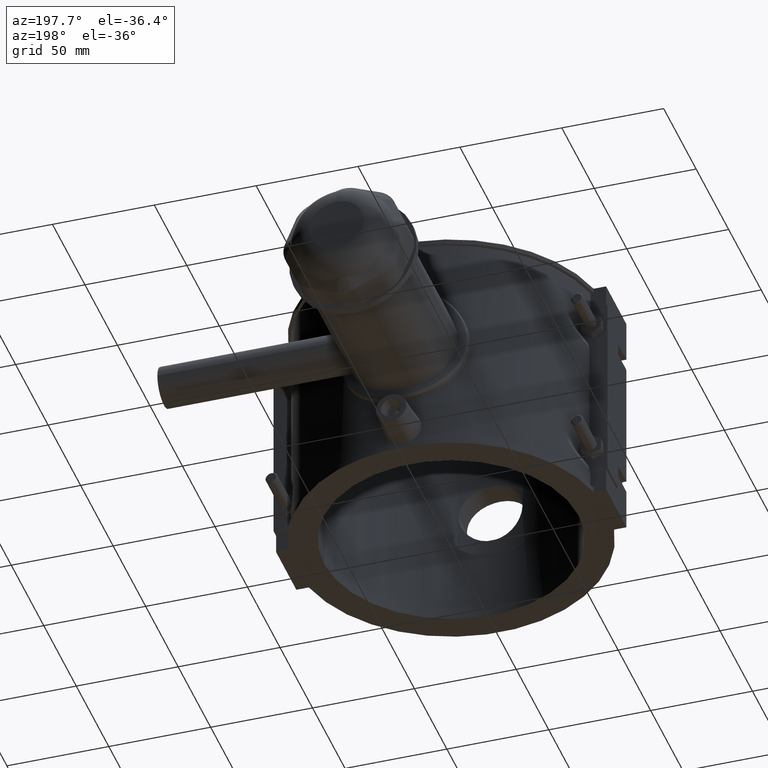
[diagram: clean part render]
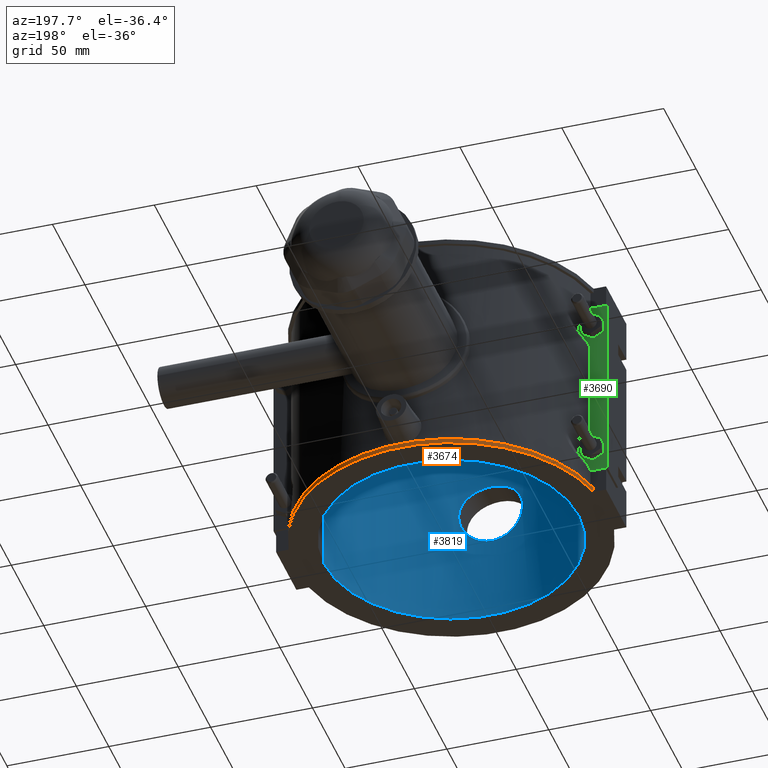
[diagram: same view with three faces highlighted in distinct colors, each labeled with its STEP entity id]
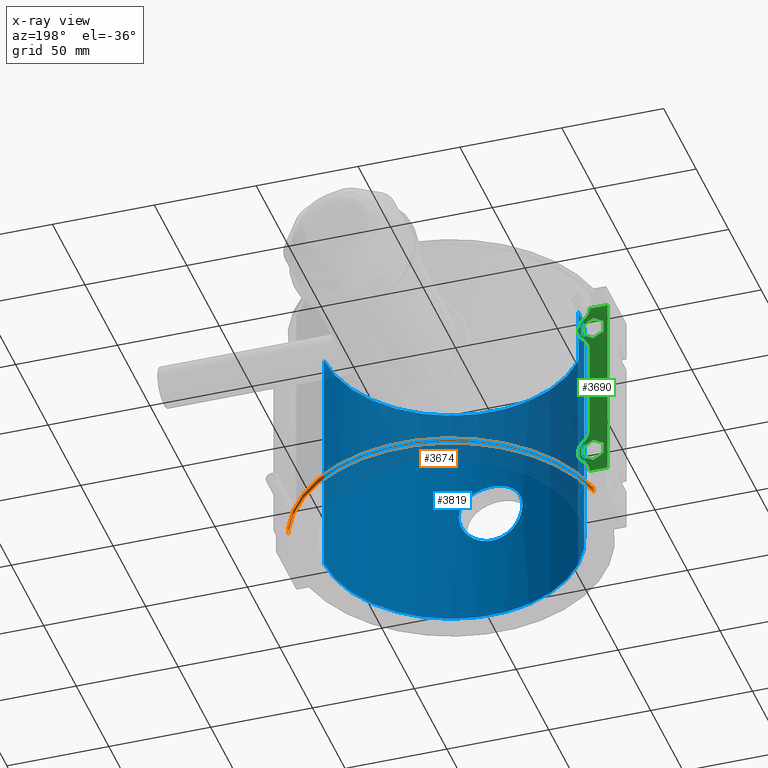
[diagram: x-ray of the same camera — body ghosted, the three highlighted faces saturated]
A machine part, auxiliary view with three faces highlighted in distinct colors.
The next image is the same camera in x-ray (body ghosted, the three faces saturated) — at least one of them is partly hidden behind the body in this view.
Their STEP definitions:

[orange] entity #3674 — the highlighted cylindrical surface (partial cylindrical patch) has radius 76.5 mm, axis along (0, 0, -1).
#109=LINE('',#6435,#408);
#110=LINE('',#6438,#409);
#408=VECTOR('',#4411,2.36);
#409=VECTOR('',#4414,2.36);
#821=CIRCLE('',#3923,76.5);
#822=CIRCLE('',#3924,76.5);
#1028=FACE_OUTER_BOUND('',#1264,.T.);
#1264=EDGE_LOOP('',(#2770,#2771,#2772,#2773));
#1669=VERTEX_POINT('',#6431);
#1670=VERTEX_POINT('',#6432);
#1671=VERTEX_POINT('',#6434);
#1672=VERTEX_POINT('',#6436);
#2081=EDGE_CURVE('',#1669,#1670,#821,.T.);
#2082=EDGE_CURVE('',#1671,#1670,#109,.T.);
#2083=EDGE_CURVE('',#1671,#1672,#822,.T.);
#2084=EDGE_CURVE('',#1669,#1672,#110,.T.);
#2770=ORIENTED_EDGE('',*,*,#2081,.T.);
#2771=ORIENTED_EDGE('',*,*,#2082,.F.);
#2772=ORIENTED_EDGE('',*,*,#2083,.T.);
#2773=ORIENTED_EDGE('',*,*,#2084,.F.);
#3564=CYLINDRICAL_SURFACE('',#3922,76.5);
#3674=ADVANCED_FACE('',(#1028),#3564,.T.);
#3922=AXIS2_PLACEMENT_3D('',#6430,#4407,#4408);
#3923=AXIS2_PLACEMENT_3D('',#6433,#4409,#4410);
#3924=AXIS2_PLACEMENT_3D('',#6437,#4412,#4413);
#4407=DIRECTION('center_axis',(0.,0.,-1.));
#4408=DIRECTION('ref_axis',(0.97891910032494,0.204248366013072,0.));
#4409=DIRECTION('center_axis',(0.,0.,1.));
#4410=DIRECTION('ref_axis',(0.97891910032494,0.204248366013072,0.));
#4411=DIRECTION('',(0.,0.,-1.));
#4412=DIRECTION('center_axis',(0.,0.,-1.));
#4413=DIRECTION('ref_axis',(0.97891910032494,0.204248366013072,0.));
#4414=DIRECTION('',(0.,0.,1.));
#6430=CARTESIAN_POINT('Origin',(0.,0.,-59.));
#6431=CARTESIAN_POINT('',(74.8873111748579,15.625,-59.));
#6432=CARTESIAN_POINT('',(-74.8873111748579,15.625,-59.));
#6433=CARTESIAN_POINT('Origin',(0.,0.,-59.));
#6434=CARTESIAN_POINT('',(-74.8873111748579,15.625,-56.64));
#6435=CARTESIAN_POINT('',(-74.8873111748579,15.625,-59.));
#6436=CARTESIAN_POINT('',(74.8873111748579,15.625,-56.64));
#6437=CARTESIAN_POINT('Origin',(0.,0.,-56.64));
#6438=CARTESIAN_POINT('',(74.8873111748579,15.625,-59.));

[blue] entity #3819 — the highlighted cylindrical surface (partial cylindrical patch) has radius 62.5 mm, axis along (0, 0, 1).
#284=LINE('',#7639,#583);
#337=LINE('',#8031,#636);
#583=VECTOR('',#4882,118.);
#636=VECTOR('',#5071,118.);
#901=CIRCLE('',#4142,62.5);
#902=CIRCLE('',#4144,62.5);
#953=FACE_BOUND('',#1446,.T.);
#1173=FACE_OUTER_BOUND('',#1445,.T.);
#1445=EDGE_LOOP('',(#3500,#3501,#3502,#3503));
#1446=EDGE_LOOP('',(#3504));
#1509=B_SPLINE_CURVE_WITH_KNOTS('',3,(#6182,#6183,#6184,#6185,#6186,#6187,
#6188,#6189,#6190,#6191,#6192,#6193,#6194,#6195,#6196,#6197,#6198,#6199,
#6200,#6201,#6202,#6203,#6204,#6205,#6206,#6207,#6208,#6209,#6210,#6211,
#6212,#6213,#6214,#6215,#6216,#6217,#6218,#6219,#6220,#6221,#6222,#6223,
#6224,#6225,#6226,#6227,#6228,#6229,#6230,#6231,#6232,#6233,#6234,#6235,
#6236,#6237,#6238,#6239,#6240,#6241,#6242,#6243,#6244,#6245,#6246,#6247),
 .UNSPECIFIED.,.T.,.F.,(4,2,2,2,2,2,2,2,2,2,2,2,2,2,2,2,2,2,2,2,2,2,2,2,
2,2,2,2,2,2,2,2,4),(0.,0.296713617074853,0.593427234149707,0.89014085122456,
1.18685446829941,1.48352599418842,1.78019752007742,2.07686904596642,2.37354057185543,
2.67021209774443,2.96688362363343,3.26355514952244,3.56022667541144,3.85694029248629,
4.15365390956114,4.450367526636,4.74708114371085,5.04379476078571,5.34050837786056,
5.63722199493541,5.93393561201027,6.23060713789927,6.52727866378827,6.82395018967727,
7.12062171556628,7.41729324145528,7.71396476734428,8.01063629323329,8.30730781912229,
8.60402143619714,8.900735053272,9.19744867034685,9.4941622874217),
 .UNSPECIFIED.);
#1667=VERTEX_POINT('',#6181);
#1865=VERTEX_POINT('',#7636);
#1866=VERTEX_POINT('',#7638);
#1918=VERTEX_POINT('',#8028);
#1919=VERTEX_POINT('',#8030);
#2078=EDGE_CURVE('',#1667,#1667,#1509,.T.);
#2354=EDGE_CURVE('',#1866,#1865,#284,.T.);
#2447=EDGE_CURVE('',#1919,#1918,#337,.T.);
#2449=EDGE_CURVE('',#1919,#1865,#901,.T.);
#2450=EDGE_CURVE('',#1866,#1918,#902,.T.);
#3500=ORIENTED_EDGE('',*,*,#2447,.T.);
#3501=ORIENTED_EDGE('',*,*,#2450,.F.);
#3502=ORIENTED_EDGE('',*,*,#2354,.T.);
#3503=ORIENTED_EDGE('',*,*,#2449,.F.);
#3504=ORIENTED_EDGE('',*,*,#2078,.T.);
#3600=CYLINDRICAL_SURFACE('',#4145,62.5);
#3819=ADVANCED_FACE('',(#1173,#953),#3600,.F.);
#4142=AXIS2_PLACEMENT_3D('',#8035,#5077,#5078);
#4144=AXIS2_PLACEMENT_3D('',#8037,#5081,#5082);
#4145=AXIS2_PLACEMENT_3D('',#8038,#5083,#5084);
#4882=DIRECTION('',(0.,0.,1.));
#5071=DIRECTION('',(0.,0.,-1.));
#5077=DIRECTION('center_axis',(0.,0.,-1.));
#5078=DIRECTION('ref_axis',(-1.,0.,0.));
#5081=DIRECTION('center_axis',(0.,0.,1.));
#5082=DIRECTION('ref_axis',(-1.,0.,0.));
#5083=DIRECTION('center_axis',(0.,0.,1.));
#5084=DIRECTION('ref_axis',(-1.,0.,0.));
#6181=CARTESIAN_POINT('',(15.68,-60.5011371793952,-2.77555756156289E-16));
#6182=CARTESIAN_POINT('Ctrl Pts',(15.68,-60.5011371793952,-2.77555756156289E-16));
#6183=CARTESIAN_POINT('Ctrl Pts',(15.68,-60.5011371793952,0.989045390249511));
#6184=CARTESIAN_POINT('Ctrl Pts',(15.5849128879652,-60.5260509344362,2.01044452076717));
#6185=CARTESIAN_POINT('Ctrl Pts',(15.1859893214769,-60.6273707143846,4.03944615733215));
#6186=CARTESIAN_POINT('Ctrl Pts',(14.882254018715,-60.7036916421501,5.04707279805853));
#6187=CARTESIAN_POINT('Ctrl Pts',(14.0808790626117,-60.8945687159385,6.97734078903111));
#6188=CARTESIAN_POINT('Ctrl Pts',(13.5826027393085,-61.0090844109358,7.9016004003937));
#6189=CARTESIAN_POINT('Ctrl Pts',(12.4327969197639,-61.2537430575092,9.60978391321038));
#6190=CARTESIAN_POINT('Ctrl Pts',(11.7811822567518,-61.3836351907405,10.3936864012583));
#6191=CARTESIAN_POINT('Ctrl Pts',(10.3937848149181,-61.6337247036271,11.781083843092));
#6192=CARTESIAN_POINT('Ctrl Pts',(9.60992827535144,-61.7627993138526,12.4326873128922));
#6193=CARTESIAN_POINT('Ctrl Pts',(7.90171663618481,-62.004491569047,13.5825369316202));
#6194=CARTESIAN_POINT('Ctrl Pts',(6.97738300336776,-62.1168773493664,14.0808636950187));
#6195=CARTESIAN_POINT('Ctrl Pts',(5.04696967397419,-62.3034382855447,14.88229467369));
#6196=CARTESIAN_POINT('Ctrl Pts',(4.039273959469,-62.3776074704934,15.1860356320058));
#6197=CARTESIAN_POINT('Ctrl Pts',(2.0102529703561,-62.4759196079409,15.5849380920303));
#6198=CARTESIAN_POINT('Ctrl Pts',(0.988905086296677,-62.5,15.68));
#6199=CARTESIAN_POINT('Ctrl Pts',(-0.988905086296675,-62.5,15.68));
#6200=CARTESIAN_POINT('Ctrl Pts',(-2.0102529703561,-62.4759196079409,15.5849380920303));
#6201=CARTESIAN_POINT('Ctrl Pts',(-4.039273959469,-62.3776074704934,15.1860356320058));
#6202=CARTESIAN_POINT('Ctrl Pts',(-5.04696967397419,-62.3034382855447,14.88229467369));
#6203=CARTESIAN_POINT('Ctrl Pts',(-6.97738300336776,-62.1168773493664,14.0808636950187));
#6204=CARTESIAN_POINT('Ctrl Pts',(-7.90171663618481,-62.004491569047,13.5825369316202));
#6205=CARTESIAN_POINT('Ctrl Pts',(-9.60992827535144,-61.7627993138526,12.4326873128922));
#6206=CARTESIAN_POINT('Ctrl Pts',(-10.3937848149181,-61.6337247036271,11.781083843092));
#6207=CARTESIAN_POINT('Ctrl Pts',(-11.7811822567518,-61.3836351907405,10.3936864012583));
#6208=CARTESIAN_POINT('Ctrl Pts',(-12.4327969197639,-61.2537430575092,9.60978391321039));
#6209=CARTESIAN_POINT('Ctrl Pts',(-13.5826027393085,-61.0090844109358,7.9016004003937));
#6210=CARTESIAN_POINT('Ctrl Pts',(-14.0808790626117,-60.8945687159385,6.97734078903112));
#6211=CARTESIAN_POINT('Ctrl Pts',(-14.882254018715,-60.7036916421501,5.04707279805853));
#6212=CARTESIAN_POINT('Ctrl Pts',(-15.1859893214769,-60.6273707143846,4.03944615733215));
#6213=CARTESIAN_POINT('Ctrl Pts',(-15.5849128879652,-60.5260509344362,2.01044452076717));
#6214=CARTESIAN_POINT('Ctrl Pts',(-15.68,-60.5011371793952,0.989045390249513));
#6215=CARTESIAN_POINT('Ctrl Pts',(-15.68,-60.5011371793952,-0.989045390249513));
#6216=CARTESIAN_POINT('Ctrl Pts',(-15.5849128879652,-60.5260509344362,-2.01044452076717));
#6217=CARTESIAN_POINT('Ctrl Pts',(-15.1859893214769,-60.6273707143846,-4.03944615733215));
#6218=CARTESIAN_POINT('Ctrl Pts',(-14.882254018715,-60.7036916421501,-5.04707279805853));
#6219=CARTESIAN_POINT('Ctrl Pts',(-14.0808790626117,-60.8945687159385,-6.97734078903111));
#6220=CARTESIAN_POINT('Ctrl Pts',(-13.5826027393085,-61.0090844109358,-7.90160040039369));
#6221=CARTESIAN_POINT('Ctrl Pts',(-12.4327969197639,-61.2537430575092,-9.60978391321038));
#6222=CARTESIAN_POINT('Ctrl Pts',(-11.7811822567518,-61.3836351907405,-10.3936864012583));
#6223=CARTESIAN_POINT('Ctrl Pts',(-10.3937848149181,-61.6337247036271,-11.781083843092));
#6224=CARTESIAN_POINT('Ctrl Pts',(-9.60992827535144,-61.7627993138526,-12.4326873128922));
#6225=CARTESIAN_POINT('Ctrl Pts',(-7.90171663618481,-62.004491569047,-13.5825369316202));
#6226=CARTESIAN_POINT('Ctrl Pts',(-6.97738300336776,-62.1168773493664,-14.0808636950187));
#6227=CARTESIAN_POINT('Ctrl Pts',(-5.04696967397419,-62.3034382855447,-14.88229467369));
#6228=CARTESIAN_POINT('Ctrl Pts',(-4.039273959469,-62.3776074704934,-15.1860356320058));
#6229=CARTESIAN_POINT('Ctrl Pts',(-2.01025297035611,-62.4759196079409,-15.5849380920303));
#6230=CARTESIAN_POINT('Ctrl Pts',(-0.988905086296681,-62.5,-15.68));
#6231=CARTESIAN_POINT('Ctrl Pts',(0.988905086296675,-62.5,-15.68));
#6232=CARTESIAN_POINT('Ctrl Pts',(2.0102529703561,-62.4759196079409,-15.5849380920303));
#6233=CARTESIAN_POINT('Ctrl Pts',(4.039273959469,-62.3776074704934,-15.1860356320058));
#6234=CARTESIAN_POINT('Ctrl Pts',(5.04696967397418,-62.3034382855447,-14.88229467369));
#6235=CARTESIAN_POINT('Ctrl Pts',(6.97738300336775,-62.1168773493664,-14.0808636950187));
#6236=CARTESIAN_POINT('Ctrl Pts',(7.90171663618481,-62.004491569047,-13.5825369316202));
#6237=CARTESIAN_POINT('Ctrl Pts',(9.60992827535144,-61.7627993138526,-12.4326873128922));
#6238=CARTESIAN_POINT('Ctrl Pts',(10.3937848149181,-61.6337247036271,-11.781083843092));
#6239=CARTESIAN_POINT('Ctrl Pts',(11.7811822567518,-61.3836351907405,-10.3936864012583));
#6240=CARTESIAN_POINT('Ctrl Pts',(12.4327969197639,-61.2537430575092,-9.60978391321038));
#6241=CARTESIAN_POINT('Ctrl Pts',(13.5826027393085,-61.0090844109358,-7.9016004003937));
#6242=CARTESIAN_POINT('Ctrl Pts',(14.0808790626117,-60.8945687159385,-6.97734078903111));
#6243=CARTESIAN_POINT('Ctrl Pts',(14.882254018715,-60.7036916421501,-5.04707279805852));
#6244=CARTESIAN_POINT('Ctrl Pts',(15.1859893214769,-60.6273707143846,-4.03944615733214));
#6245=CARTESIAN_POINT('Ctrl Pts',(15.5849128879652,-60.5260509344362,-2.01044452076716));
#6246=CARTESIAN_POINT('Ctrl Pts',(15.68,-60.5011371793952,-0.989045390249508));
#6247=CARTESIAN_POINT('Ctrl Pts',(15.68,-60.5011371793952,-2.77555756156289E-16));
#7636=CARTESIAN_POINT('',(-62.4999799999968,-0.0500000000000078,59.));
#7638=CARTESIAN_POINT('',(-62.4999799999968,-0.0500000000000078,-59.));
#7639=CARTESIAN_POINT('',(-62.4999799999968,-0.0500000000000078,0.));
#8028=CARTESIAN_POINT('',(62.4999799999968,-0.0500000000000078,-59.));
#8030=CARTESIAN_POINT('',(62.4999799999968,-0.0500000000000078,59.));
#8031=CARTESIAN_POINT('',(62.4999799999968,-0.0500000000000078,0.));
#8035=CARTESIAN_POINT('Origin',(0.,0.,59.));
#8037=CARTESIAN_POINT('Origin',(0.,0.,-59.));
#8038=CARTESIAN_POINT('Origin',(0.,0.,0.));

[green] entity #3690 — the highlighted planar face has unit normal (0, -1, 0).
#138=LINE('',#6522,#437);
#139=LINE('',#6539,#438);
#140=LINE('',#6556,#439);
#161=LINE('',#6823,#460);
#162=LINE('',#6826,#461);
#166=LINE('',#6833,#465);
#167=LINE('',#6874,#466);
#168=LINE('',#6876,#467);
#169=LINE('',#6878,#468);
#170=LINE('',#6880,#469);
#171=LINE('',#6882,#470);
#172=LINE('',#6883,#471);
#173=LINE('',#6886,#472);
#174=LINE('',#6888,#473);
#175=LINE('',#6890,#474);
#176=LINE('',#6892,#475);
#177=LINE('',#6894,#476);
#178=LINE('',#6895,#477);
#437=VECTOR('',#4488,0.588591724710401);
#438=VECTOR('',#4489,48.3771834494208);
#439=VECTOR('',#4490,0.588591724710401);
#460=VECTOR('',#4525,8.86581254297004);
#461=VECTOR('',#4528,8.86581254297004);
#465=VECTOR('',#4534,94.4);
#466=VECTOR('',#4539,5.77350269189625);
#467=VECTOR('',#4540,5.77350269189626);
#468=VECTOR('',#4541,5.77350269189625);
#469=VECTOR('',#4542,5.77350269189625);
#470=VECTOR('',#4543,5.77350269189625);
#471=VECTOR('',#4544,5.77350269189626);
#472=VECTOR('',#4545,5.77350269189627);
#473=VECTOR('',#4546,5.77350269189626);
#474=VECTOR('',#4547,5.77350269189626);
#475=VECTOR('',#4548,5.77350269189626);
#476=VECTOR('',#4549,5.77350269189626);
#477=VECTOR('',#4550,5.77350269189624);
#696=PLANE('',#3956);
#839=CIRCLE('',#3957,7.5);
#840=CIRCLE('',#3958,7.5);
#921=FACE_BOUND('',#1285,.T.);
#922=FACE_BOUND('',#1286,.T.);
#1044=FACE_OUTER_BOUND('',#1284,.T.);
#1284=EDGE_LOOP('',(#2884,#2885,#2886,#2887,#2888,#2889,#2890,#2891,#2892,
#2893,#2894,#2895));
#1285=EDGE_LOOP('',(#2896,#2897,#2898,#2899,#2900,#2901));
#1286=EDGE_LOOP('',(#2902,#2903,#2904,#2905,#2906,#2907));
#1526=B_SPLINE_CURVE_WITH_KNOTS('',3,(#6835,#6836,#6837,#6838,#6839,#6840,
#6841,#6842),.UNSPECIFIED.,.F.,.F.,(4,2,2,4),(-0.608600051633237,-0.427275541870311,
-0.243246402726517,0.),.UNSPECIFIED.);
#1527=B_SPLINE_CURVE_WITH_KNOTS('',3,(#6845,#6846,#6847,#6848,#6849,#6850,
#6851,#6852),.UNSPECIFIED.,.F.,.F.,(4,2,2,4),(-0.609244250859852,-0.438868636799245,
-0.269172934624282,0.),.UNSPECIFIED.);
#1528=B_SPLINE_CURVE_WITH_KNOTS('',3,(#6854,#6855,#6856,#6857,#6858,#6859,
#6860,#6861),.UNSPECIFIED.,.F.,.F.,(4,2,2,4),(-0.608600051633275,-0.427275541870331,
-0.243246402726506,0.),.UNSPECIFIED.);
#1529=B_SPLINE_CURVE_WITH_KNOTS('',3,(#6864,#6865,#6866,#6867,#6868,#6869,
#6870,#6871),.UNSPECIFIED.,.F.,.F.,(4,2,2,4),(-0.609244250859861,-0.438868636799221,
-0.269172934624272,0.),.UNSPECIFIED.);
#1704=VERTEX_POINT('',#6519);
#1705=VERTEX_POINT('',#6521);
#1706=VERTEX_POINT('',#6523);
#1707=VERTEX_POINT('',#6538);
#1708=VERTEX_POINT('',#6540);
#1709=VERTEX_POINT('',#6555);
#1740=VERTEX_POINT('',#6821);
#1741=VERTEX_POINT('',#6825);
#1744=VERTEX_POINT('',#6834);
#1745=VERTEX_POINT('',#6843);
#1746=VERTEX_POINT('',#6853);
#1747=VERTEX_POINT('',#6862);
#1748=VERTEX_POINT('',#6872);
#1749=VERTEX_POINT('',#6873);
#1750=VERTEX_POINT('',#6875);
#1751=VERTEX_POINT('',#6877);
#1752=VERTEX_POINT('',#6879);
#1753=VERTEX_POINT('',#6881);
#1754=VERTEX_POINT('',#6884);
#1755=VERTEX_POINT('',#6885);
#1756=VERTEX_POINT('',#6887);
#1757=VERTEX_POINT('',#6889);
#1758=VERTEX_POINT('',#6891);
#1759=VERTEX_POINT('',#6893);
#2124=EDGE_CURVE('',#1704,#1705,#138,.T.);
#2126=EDGE_CURVE('',#1706,#1707,#139,.T.);
#2128=EDGE_CURVE('',#1708,#1709,#140,.T.);
#2165=EDGE_CURVE('',#1704,#1740,#161,.T.);
#2166=EDGE_CURVE('',#1741,#1709,#162,.T.);
#2170=EDGE_CURVE('',#1740,#1741,#166,.T.);
#2171=EDGE_CURVE('',#1744,#1708,#1526,.T.);
#2172=EDGE_CURVE('',#1745,#1744,#839,.T.);
#2173=EDGE_CURVE('',#1707,#1745,#1527,.T.);
#2174=EDGE_CURVE('',#1746,#1706,#1528,.T.);
#2175=EDGE_CURVE('',#1747,#1746,#840,.T.);
#2176=EDGE_CURVE('',#1705,#1747,#1529,.T.);
#2177=EDGE_CURVE('',#1748,#1749,#167,.T.);
#2178=EDGE_CURVE('',#1750,#1748,#168,.T.);
#2179=EDGE_CURVE('',#1751,#1750,#169,.T.);
#2180=EDGE_CURVE('',#1752,#1751,#170,.T.);
#2181=EDGE_CURVE('',#1753,#1752,#171,.T.);
#2182=EDGE_CURVE('',#1749,#1753,#172,.T.);
#2183=EDGE_CURVE('',#1754,#1755,#173,.T.);
#2184=EDGE_CURVE('',#1756,#1754,#174,.T.);
#2185=EDGE_CURVE('',#1757,#1756,#175,.T.);
#2186=EDGE_CURVE('',#1758,#1757,#176,.T.);
#2187=EDGE_CURVE('',#1759,#1758,#177,.T.);
#2188=EDGE_CURVE('',#1755,#1759,#178,.T.);
#2884=ORIENTED_EDGE('',*,*,#2124,.F.);
#2885=ORIENTED_EDGE('',*,*,#2165,.T.);
#2886=ORIENTED_EDGE('',*,*,#2170,.T.);
#2887=ORIENTED_EDGE('',*,*,#2166,.T.);
#2888=ORIENTED_EDGE('',*,*,#2128,.F.);
#2889=ORIENTED_EDGE('',*,*,#2171,.F.);
#2890=ORIENTED_EDGE('',*,*,#2172,.F.);
#2891=ORIENTED_EDGE('',*,*,#2173,.F.);
#2892=ORIENTED_EDGE('',*,*,#2126,.F.);
#2893=ORIENTED_EDGE('',*,*,#2174,.F.);
#2894=ORIENTED_EDGE('',*,*,#2175,.F.);
#2895=ORIENTED_EDGE('',*,*,#2176,.F.);
#2896=ORIENTED_EDGE('',*,*,#2177,.F.);
#2897=ORIENTED_EDGE('',*,*,#2178,.F.);
#2898=ORIENTED_EDGE('',*,*,#2179,.F.);
#2899=ORIENTED_EDGE('',*,*,#2180,.F.);
#2900=ORIENTED_EDGE('',*,*,#2181,.F.);
#2901=ORIENTED_EDGE('',*,*,#2182,.F.);
#2902=ORIENTED_EDGE('',*,*,#2183,.F.);
#2903=ORIENTED_EDGE('',*,*,#2184,.F.);
#2904=ORIENTED_EDGE('',*,*,#2185,.F.);
#2905=ORIENTED_EDGE('',*,*,#2186,.F.);
#2906=ORIENTED_EDGE('',*,*,#2187,.F.);
#2907=ORIENTED_EDGE('',*,*,#2188,.F.);
#3690=ADVANCED_FACE('',(#1044,#921,#922),#696,.F.);
#3956=AXIS2_PLACEMENT_3D('',#6832,#4532,#4533);
#3957=AXIS2_PLACEMENT_3D('',#6844,#4535,#4536);
#3958=AXIS2_PLACEMENT_3D('',#6863,#4537,#4538);
#4488=DIRECTION('',(0.,0.,1.));
#4489=DIRECTION('',(0.,0.,1.));
#4490=DIRECTION('',(0.,0.,1.));
#4525=DIRECTION('',(-1.,0.,0.));
#4528=DIRECTION('',(1.,0.,0.));
#4532=DIRECTION('center_axis',(0.,-1.,0.));
#4533=DIRECTION('ref_axis',(1.,0.,0.));
#4534=DIRECTION('',(0.,0.,1.));
#4535=DIRECTION('center_axis',(0.,-1.,0.));
#4536=DIRECTION('ref_axis',(1.,0.,0.));
#4537=DIRECTION('center_axis',(0.,-1.,0.));
#4538=DIRECTION('ref_axis',(1.,0.,0.));
#4539=DIRECTION('',(-0.866025403784439,0.,0.5));
#4540=DIRECTION('',(-0.866025403784438,0.,-0.5));
#4541=DIRECTION('',(0.,0.,-1.));
#4542=DIRECTION('',(0.866025403784439,0.,-0.5));
#4543=DIRECTION('',(0.866025403784439,0.,0.499999999999999));
#4544=DIRECTION('',(0.,0.,1.));
#4545=DIRECTION('',(-0.866025403784439,0.,-0.499999999999999));
#4546=DIRECTION('',(0.,0.,-1.));
#4547=DIRECTION('',(0.866025403784438,0.,-0.5));
#4548=DIRECTION('',(0.866025403784438,0.,0.5));
#4549=DIRECTION('',(0.,0.,1.));
#4550=DIRECTION('',(-0.866025403784438,0.,0.500000000000002));
#6519=CARTESIAN_POINT('',(-73.13418745703,16.6250000000001,-47.2));
#6521=CARTESIAN_POINT('',(-73.13418745703,16.625,-46.6114082752896));
#6522=CARTESIAN_POINT('',(-73.13418745703,16.6250000000001,0.));
#6523=CARTESIAN_POINT('',(-73.13418745703,16.625,-24.1885917247104));
#6538=CARTESIAN_POINT('',(-73.13418745703,16.625,24.1885917247104));
#6539=CARTESIAN_POINT('',(-73.13418745703,16.6250000000001,0.));
#6540=CARTESIAN_POINT('',(-73.13418745703,16.625,46.6114082752896));
#6555=CARTESIAN_POINT('',(-73.13418745703,16.6250000000001,47.2));
#6556=CARTESIAN_POINT('',(-73.13418745703,16.6250000000001,0.));
#6821=CARTESIAN_POINT('',(-82.,16.6250000000001,-47.2));
#6823=CARTESIAN_POINT('',(-82.,16.6250000000001,-47.2));
#6825=CARTESIAN_POINT('',(-82.,16.6250000000001,47.2));
#6826=CARTESIAN_POINT('',(-82.,16.6250000000001,47.2));
#6832=CARTESIAN_POINT('Origin',(-82.,16.6250000000001,0.));
#6833=CARTESIAN_POINT('',(-82.,16.6250000000001,0.));
#6834=CARTESIAN_POINT('',(-70.477968308609,16.6250000000001,41.3834128540537));
#6835=CARTESIAN_POINT('Ctrl Pts',(-70.477968308609,16.6250000000001,41.3834128540537));
#6836=CARTESIAN_POINT('Ctrl Pts',(-70.9606537887566,16.6250000000001,41.7482078450467));
#6837=CARTESIAN_POINT('Ctrl Pts',(-71.3936750093956,16.6250000000117,42.1753881946308));
#6838=CARTESIAN_POINT('Ctrl Pts',(-72.1390475684491,16.6250000000117,43.1398957319182));
#6839=CARTESIAN_POINT('Ctrl Pts',(-72.446523262436,16.6250000000199,43.6749342118246));
#6840=CARTESIAN_POINT('Ctrl Pts',(-72.9761079758534,16.6250000000199,44.9980965841791));
#6841=CARTESIAN_POINT('Ctrl Pts',(-73.13418745703,16.6250000000001,45.8005869328679));
#6842=CARTESIAN_POINT('Ctrl Pts',(-73.13418745703,16.6250000000001,46.6114082752896));
#6843=CARTESIAN_POINT('',(-70.477968308609,16.6250000000001,29.4165871459463));
#6844=CARTESIAN_POINT('Origin',(-75.,16.6250000000001,35.4));
#6845=CARTESIAN_POINT('Ctrl Pts',(-73.13418745703,16.6250000000001,24.1885917247104));
#6846=CARTESIAN_POINT('Ctrl Pts',(-73.13418745703,16.6250000000001,24.7560062595779));
#6847=CARTESIAN_POINT('Ctrl Pts',(-73.0567290303484,16.6249999999948,25.3205439720583));
#6848=CARTESIAN_POINT('Ctrl Pts',(-72.7560670159624,16.6249999999948,26.4127463112055));
#6849=CARTESIAN_POINT('Ctrl Pts',(-72.5348214604037,16.6250000000002,26.9356331320742));
#6850=CARTESIAN_POINT('Ctrl Pts',(-71.7983995533765,16.6250000000002,28.1989117293406));
#6851=CARTESIAN_POINT('Ctrl Pts',(-71.1937784406064,16.6250000000001,28.8756055722415));
#6852=CARTESIAN_POINT('Ctrl Pts',(-70.477968308609,16.6250000000001,29.4165871459463));
#6853=CARTESIAN_POINT('',(-70.4779683086089,16.6250000000001,-29.4165871459463));
#6854=CARTESIAN_POINT('Ctrl Pts',(-70.477968308609,16.6250000000001,-29.4165871459463));
#6855=CARTESIAN_POINT('Ctrl Pts',(-70.9606537887566,16.6250000000001,-29.0517921549533));
#6856=CARTESIAN_POINT('Ctrl Pts',(-71.3936750093956,16.6250000000117,-28.6246118053692));
#6857=CARTESIAN_POINT('Ctrl Pts',(-72.1390475684491,16.6250000000117,-27.6601042680817));
#6858=CARTESIAN_POINT('Ctrl Pts',(-72.4465232624361,16.6250000000199,-27.1250657881752));
#6859=CARTESIAN_POINT('Ctrl Pts',(-72.9761079758534,16.6250000000199,-25.8019034158208));
#6860=CARTESIAN_POINT('Ctrl Pts',(-73.13418745703,16.6250000000001,-24.9994130671321));
#6861=CARTESIAN_POINT('Ctrl Pts',(-73.13418745703,16.6250000000001,-24.1885917247104));
#6862=CARTESIAN_POINT('',(-70.477968308609,16.6250000000001,-41.3834128540537));
#6863=CARTESIAN_POINT('Origin',(-75.,16.6250000000001,-35.4));
#6864=CARTESIAN_POINT('Ctrl Pts',(-73.13418745703,16.6250000000001,-46.6114082752896));
#6865=CARTESIAN_POINT('Ctrl Pts',(-73.13418745703,16.6250000000001,-46.0439937404221));
#6866=CARTESIAN_POINT('Ctrl Pts',(-73.0567290303484,16.6249999999948,-45.4794560279417));
#6867=CARTESIAN_POINT('Ctrl Pts',(-72.7560670159623,16.6249999999948,-44.3872536887945));
#6868=CARTESIAN_POINT('Ctrl Pts',(-72.5348214604037,16.6250000000002,-43.8643668679258));
#6869=CARTESIAN_POINT('Ctrl Pts',(-71.7983995533765,16.6250000000002,-42.6010882706594));
#6870=CARTESIAN_POINT('Ctrl Pts',(-71.1937784406064,16.6250000000001,-41.9243944277585));
#6871=CARTESIAN_POINT('Ctrl Pts',(-70.477968308609,16.6250000000001,-41.3834128540537));
#6872=CARTESIAN_POINT('',(-75.,16.6250000000001,29.6264973081037));
#6873=CARTESIAN_POINT('',(-80.,16.6250000000001,32.5132486540519));
#6874=CARTESIAN_POINT('',(-73.7106751765077,16.6250000000001,28.8821052741876));
#6875=CARTESIAN_POINT('',(-70.,16.6250000000001,32.5132486540519));
#6876=CARTESIAN_POINT('',(-84.0393248234923,16.6250000000001,24.407640687968));
#6877=CARTESIAN_POINT('',(-70.,16.6250000000001,38.2867513459481));
#6878=CARTESIAN_POINT('',(-70.,16.6250000000001,16.2566243270259));
#6879=CARTESIAN_POINT('',(-75.,16.6250000000001,41.1735026918963));
#6880=CARTESIAN_POINT('',(-66.2106751765077,16.6250000000001,36.0989836390579));
#6881=CARTESIAN_POINT('',(-80.,16.6250000000001,38.2867513459481));
#6882=CARTESIAN_POINT('',(-86.5393248234923,16.6250000000001,34.5112703987865));
#6883=CARTESIAN_POINT('',(-80.,16.6250000000001,19.1433756729741));
#6884=CARTESIAN_POINT('',(-70.,16.6250000000001,-38.2867513459481));
#6885=CARTESIAN_POINT('',(-75.0000000000001,16.6250000000001,-41.1735026918963));
#6886=CARTESIAN_POINT('',(-68.7106751765078,16.6250000000001,-37.542359312032));
#6887=CARTESIAN_POINT('',(-70.,16.6250000000001,-32.5132486540519));
#6888=CARTESIAN_POINT('',(-70.,16.6250000000001,-19.1433756729741));
#6889=CARTESIAN_POINT('',(-75.,16.6250000000001,-29.6264973081037));
#6890=CARTESIAN_POINT('',(-81.5393248234923,16.6250000000001,-25.8510163609421));
#6891=CARTESIAN_POINT('',(-80.,16.6250000000001,-32.5132486540519));
#6892=CARTESIAN_POINT('',(-71.2106751765077,16.6250000000001,-27.4387296012135));
#6893=CARTESIAN_POINT('',(-80.,16.6250000000001,-38.2867513459481));
#6894=CARTESIAN_POINT('',(-80.,16.6250000000001,-16.2566243270259));
#6895=CARTESIAN_POINT('',(-89.0393248234923,16.6250000000001,-33.0678947258124));